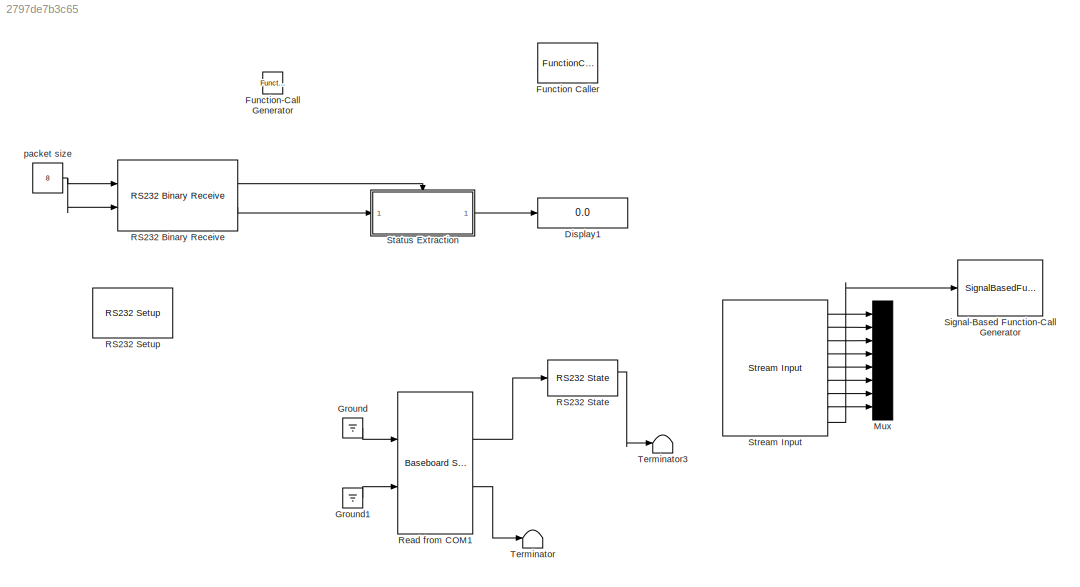
MODEL slx_2797de7b3c65
KIND model
CONFIG AbsTol = auto
CONFIG FixedStep = 0.01
CONFIG MaxStep = auto
CONFIG MinStep = auto
CONFIG RelTol = 1e-3
CONFIG SampleTimeConstraint = Unconstrained
CONFIG Solver = ode3
CONFIG SolverMode = Auto
CONFIG SolverName = ode3
CONFIG StartTime = 0.0
CONFIG StopTime = inf
BLOCK [Display] Display1
  Decimation = 1
  Ports = [1]
BLOCK [FunctionCaller] Function Caller
  Commented = on
  FunctionPrototype = y = f(u)
  InputArgumentSpecifications = boolean(1)
  OutputArgumentSpecifications = boolean(1)
  Ports = [1, 1]
BLOCK [Reference] Function-Call Generator  REF=simulink/Ports &
Subsystems/Function-Call
Generator
  Commented = on
  Ports = [0, 1]
  SourceBlock = simulink/Ports &\nSubsystems/Function-Call\nGenerator
  SourceType = Function-Call Generator
  numberOfIterations = 1
  sample_time = -1
BLOCK [Ground] Ground
  Commented = on
BLOCK [Ground] Ground1
  Commented = on
BLOCK [Mux] Mux
  Commented = on
  DisplayOption = bar
  Inputs = 8
  Ports = [8, 1]
BLOCK [Reference] RS232 Binary Receive  REF=AAxpcseriallibold/Obsolete/Binary
Mode/RS232
Binary Receive
  Ports = [2, 2]
  SourceBlock = AAxpcseriallibold/Obsolete/Binary\nMode/RS232\nBinary Receive
  SourceType = rs232brec
  port = COM3
  samptime = -1
  width = 8
BLOCK [Reference] RS232 Setup   REF=AAxpcseriallibold/Obsolete/RS232 Setup 
  Ports = []
  SourceBlock = AAxpcseriallibold/Obsolete/RS232 Setup
  SourceType = rs232setup
  baud = 19200
  dbits = 8
  initstruct = []
  parity = None
  port = COM1
  prot = None
  rbuf = 2048
  sbits = 1
  sbuf = 2048
  termstruct = []
BLOCK [Reference] RS232 State  REF=xpcseriallib/RS232 State
  Commented = on
  Ports = [1, 2]
  SourceBlock = xpcseriallib/RS232 State
  SourceType = RS232 State
  breakint = on
  frame = off
  overrun = off
  parity = off
BLOCK [Reference] Read from COM1  REF=xpcseriallib/Mainboard/Baseboard
Serial
  Commented = on
  Ports = [2, 2]
  SourceBlock = xpcseriallib/Mainboard/Baseboard\nSerial
  SourceType = Baseboard RS232 Send Receive
  automode1 = off
  automode2 = off
  baud1 = 115200
  baud2 = 115200
  config = Custom
  fifomode1 = 16 deep
  fifomode2 = 16 deep
  group = Receive Setup
  irqnum = 4
  ndata1 = 8
  ndata2 = 8
  nstop1 = 1
  nstop2 = 1
  parity1 = None
  parity2 = None
  port = 1
  rcvdatatype1 = 8 bit int null terminated
  rcvdatatype2 = count+16 bit uint
  rcvdelim1 = 13
  rcvdelim2 = 13
  rcvfifosize1 = 2048
  rcvfifosize2 = 1024
  rcvmaxread1 = 2048
  rcvmaxread2 = 1024
  rcvminread1 = 1
  rcvminread2 = 1
  rcvsampletime1 = -1
  rcvsampletime2 = .01
  rcvusedelim1 = on
  rcvusedelim2 = on
  rlevel1 = half full
  rlevel2 = half full
  saddr1 = 0x3e8
  saddr2 = 0x3e8
  xmtdatatype1 = 8 bit uint null terminated
  xmtdatatype2 = 8 bit uint null terminated
  xmtfifosize1 = 2048
  xmtfifosize2 = 1024
BLOCK [SignalBasedFunctionCallGenerator] Signal-Based Function-Call Generator
  Commented = on
  GenerateFunctionCallUpon = Trigger from port tr
  InputPortMap = u1
  OutputPortMap = o0
  Ports = [1, 1]
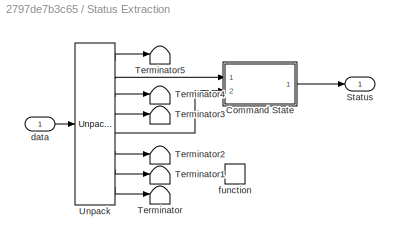
BLOCK [SubSystem] Status Extraction
  Ports = [1, 1, 0, 1]
  RequestExecContextInheritance = off
  TreatAsAtomicUnit = on
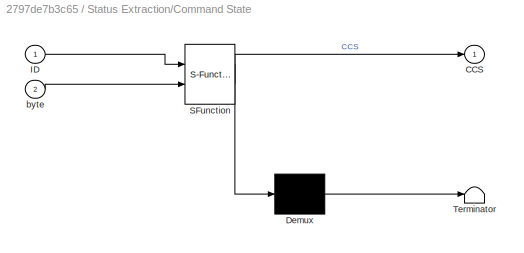
BLOCK [SubSystem] Status Extraction/Command State
  ErrorFcn = Stateflow.Translate.translate
  PermitHierarchicalResolution = ExplicitOnly
  Ports = [2, 1]
  RequestExecContextInheritance = off
  SFBlockType = MATLAB Function
  TreatAsAtomicUnit = on
BLOCK [Demux] Status Extraction/Command State/ Demux 
  Outputs = 1
  Ports = [1, 1]
BLOCK [S-Function] Status Extraction/Command State/ SFunction 
  EnableBusSupport = on
  FunctionName = sf_sfun
  PortCounts = [2 2]
  Ports = [2, 2]
  Tag = Stateflow S-Function test 29
BLOCK [Terminator] Status Extraction/Command State/ Terminator 
BLOCK [Outport] Status Extraction/Command State/CCS
  IconDisplay = Port number
BLOCK [Inport] Status Extraction/Command State/ID
  IconDisplay = Port number
BLOCK [Inport] Status Extraction/Command State/byte
  IconDisplay = Port number
  Port = 2
BLOCK [Outport] Status Extraction/Status
  IconDisplay = Port number
BLOCK [Terminator] Status Extraction/Terminator
BLOCK [Terminator] Status Extraction/Terminator1
BLOCK [Terminator] Status Extraction/Terminator2
BLOCK [Terminator] Status Extraction/Terminator3
BLOCK [Terminator] Status Extraction/Terminator4
BLOCK [Terminator] Status Extraction/Terminator5
BLOCK [Reference] Status Extraction/Unpack  REF=xpcobsoletelib/Utilities/Unpack 
  Ports = [1, 8]
  SourceBlock = xpcobsoletelib/Utilities/Unpack
  SourceType = xpcbyte2any
  byteAlign = 1
  datatypes = {'uint8','uint8','uint8','uint8','uint8','uint8','uint8','uint8'}
  dimensions = {1,1,1,1,1,1,1,1}
BLOCK [Inport] Status Extraction/data
  IconDisplay = Port number
BLOCK [TriggerPort] Status Extraction/function
  OutputDataType = int8
  Ports = []
  TriggerType = function-call
BLOCK [Reference] Stream Input  REF=sldrtlib/Stream Input
  AttributesFormatString = Standard Devices\nSerial Port [1h]
  Commented = on
  DataTypes = {'double' 'double' 'double' 'double' 'double' 'double' 'double' 'double'}
  DrvAddress = 1
  DrvName = Standard_Devices/Serial_Port
  DrvOptions = [115200 8 0 0 0 0 0 0]
  FormatString = '%f %f %f %f %f %f  %f %f'
  MaxMissedTicks = 10
  Ports = [0, 9]
  SampleTime = 0.1
  ShowError = off
  ShowMissedTicks = off
  ShowReady = on
  SourceBlock = sldrtlib/Stream Input
  SourceType = Simulink Desktop Real-Time Stream Input
  Terminator = {'\r', '\n'}
  YieldWhenWaiting = off
BLOCK [Terminator] Terminator
  Commented = on
BLOCK [Terminator] Terminator3
BLOCK [Constant] packet size
  Value = 8
LINE Ground1:1 -> Read from COM1:2
LINE Ground:1 -> Read from COM1:1
LINE RS232 Binary Receive:1 -> Status Extraction:trigger
LINE RS232 Binary Receive:2 -> Status Extraction:1
LINE RS232 State:1 -> Terminator3:1
LINE Read from COM1:1 -> RS232 State:1
LINE Read from COM1:2 -> Terminator:1
LINE Status Extraction/Command State:1 -> Status Extraction/Status:1
LINE Status Extraction/Unpack:1 -> Status Extraction/Terminator5:1
LINE Status Extraction/Unpack:2 -> Status Extraction/Command State:1
LINE Status Extraction/Unpack:3 -> Status Extraction/Terminator4:1
LINE Status Extraction/Unpack:4 -> Status Extraction/Terminator3:1
LINE Status Extraction/Unpack:5 -> Status Extraction/Command State:2
LINE Status Extraction/Unpack:6 -> Status Extraction/Terminator2:1
LINE Status Extraction/Unpack:7 -> Status Extraction/Terminator1:1
LINE Status Extraction/Unpack:8 -> Status Extraction/Terminator:1
LINE Status Extraction/data:1 -> Status Extraction/Unpack:1
LINE Status Extraction:1 -> Display1:1
LINE Stream Input:1 -> Mux:1
LINE Stream Input:2 -> Mux:2
LINE Stream Input:3 -> Mux:3
LINE Stream Input:4 -> Mux:4
LINE Stream Input:5 -> Mux:5
LINE Stream Input:6 -> Mux:6
LINE Stream Input:7 -> Mux:7
LINE Stream Input:8 -> Mux:8
LINE Stream Input:9 -> Signal-Based Function-Call Generator:1
NET packet size:1 -> RS232 Binary Receive:1, RS232 Binary Receive:2
note: NET lines group one-source signal fan-out (src -> all destinations, sorted); 1:1 wires keep LINE
CHART Status Extraction/Command State states=1 transitions=1
  STATE_LABEL 'eML_blk_kernel()'
  STATE_LABEL 'SCRIPT:\nfunction CCS = fcn(ID, byte)\n% This block supports an embeddable subset of the MATLAB language.\n% See the help menu for details. \n% outputs the command channel state (CCS) given status output\n\n% first check that have proper status message\n% ID = 10 for SSC status info\nif ID==10\n    if byte==2\n        out=1;\n    elseif byte==4;\n        out=2;\n    elseif byte==6\n        out=3;\n    else\n     ...<+48ch>'
